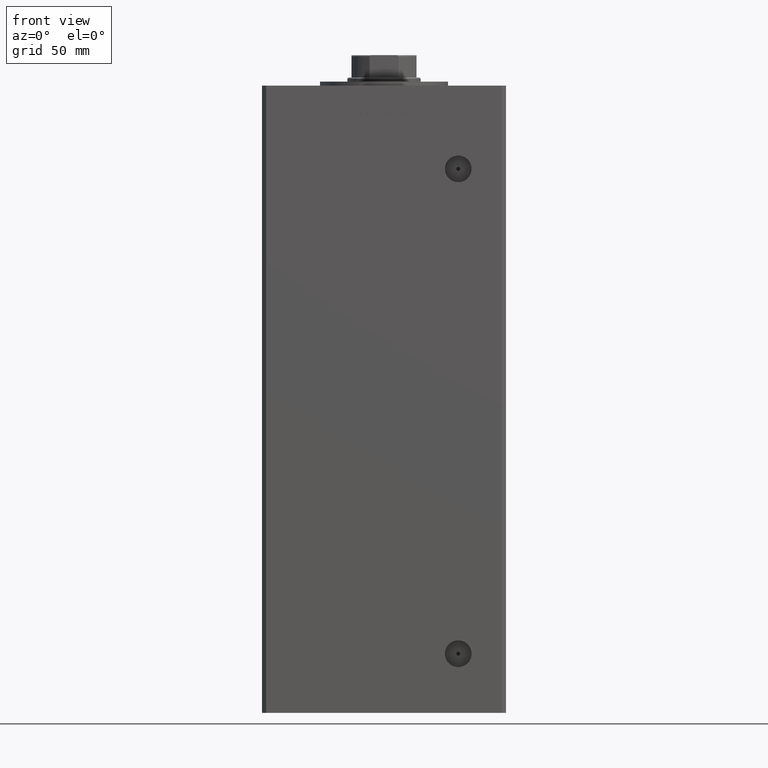
[diagram: clean part render]
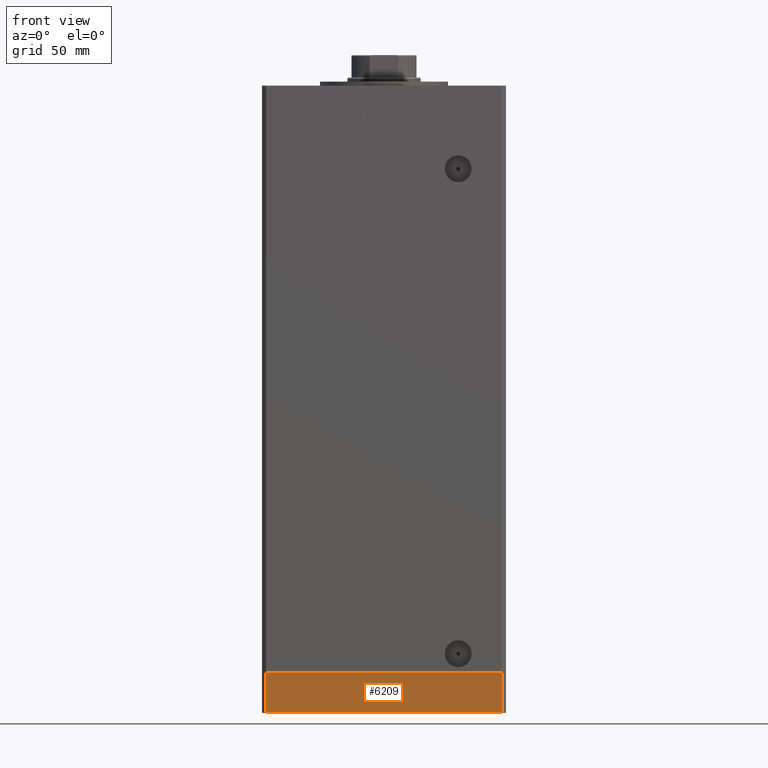
[diagram: same view with one face highlighted and labeled with its STEP entity id]
A machine part, front view. The second image highlights one B-rep face of the part: STEP entity #6209.
In plain terms, the highlighted planar face has unit normal (-0, -1, -0).
Its self-contained STEP definition (entity closure, byte-faithful):
#2713 = CARTESIAN_POINT ( 'NONE',  ( -57.99999999999997868, -51.00000000000001421, -20.00000000000000000 ) ) ;
#4733 = CARTESIAN_POINT ( 'NONE',  ( -57.99999999999997868, -51.00000000000001421, 0.000000000000000000 ) ) ;
#6209 = ADVANCED_FACE ( 'NONE', ( #22712 ), #38508, .T. ) ;
#8237 = LINE ( 'NONE', #28286, #10911 ) ;
#8427 = DIRECTION ( 'NONE',  ( 0.000000000000000000, 0.000000000000000000, 1.000000000000000000 ) ) ;
#9069 = VERTEX_POINT ( 'NONE', #18707 ) ;
#10055 = DIRECTION ( 'NONE',  ( 1.196361017915039486E-16, -1.000000000000000000, 0.000000000000000000 ) ) ;
#10882 = AXIS2_PLACEMENT_3D ( 'NONE', #46679, #10055, #34306 ) ;
#10911 = VECTOR ( 'NONE', #40657, 1000.000000000000000 ) ;
#11977 = VECTOR ( 'NONE', #8427, 1000.000000000000000 ) ;
#13757 = DIRECTION ( 'NONE',  ( 0.000000000000000000, 0.000000000000000000, 1.000000000000000000 ) ) ;
#15991 = CARTESIAN_POINT ( 'NONE',  ( -57.99999999999997868, -51.00000000000001421, 0.000000000000000000 ) ) ;
#17502 = ORIENTED_EDGE ( 'NONE', *, *, #35067, .T. ) ;
#18707 = CARTESIAN_POINT ( 'NONE',  ( 58.00000000000000000, -51.00000000000000711, -20.00000000000000000 ) ) ;
#18986 = VECTOR ( 'NONE', #13757, 1000.000000000000000 ) ;
#19733 = EDGE_CURVE ( 'NONE', #24659, #47806, #33808, .T. ) ;
#20307 = LINE ( 'NONE', #28462, #11977 ) ;
#20473 = LINE ( 'NONE', #15991, #21096 ) ;
#21096 = VECTOR ( 'NONE', #44966, 1000.000000000000000 ) ;
#22712 = FACE_OUTER_BOUND ( 'NONE', #44669, .T. ) ;
#24659 = VERTEX_POINT ( 'NONE', #2713 ) ;
#28286 = CARTESIAN_POINT ( 'NONE',  ( -57.99999999999997868, -51.00000000000001421, -20.00000000000000000 ) ) ;
#28462 = CARTESIAN_POINT ( 'NONE',  ( 58.00000000000000000, -51.00000000000000711, -20.00000000000000000 ) ) ;
#28677 = ORIENTED_EDGE ( 'NONE', *, *, #43408, .T. ) ;
#33808 = LINE ( 'NONE', #49882, #18986 ) ;
#34306 = DIRECTION ( 'NONE',  ( 1.000000000000000000, 1.196361017915039486E-16, 0.000000000000000000 ) ) ;
#35067 = EDGE_CURVE ( 'NONE', #24659, #9069, #8237, .T. ) ;
#37051 = CARTESIAN_POINT ( 'NONE',  ( 58.00000000000000000, -51.00000000000000711, 0.000000000000000000 ) ) ;
#37761 = EDGE_CURVE ( 'NONE', #47806, #41012, #20473, .T. ) ;
#38508 = PLANE ( 'NONE',  #10882 ) ;
#38954 = ORIENTED_EDGE ( 'NONE', *, *, #37761, .F. ) ;
#40657 = DIRECTION ( 'NONE',  ( 1.000000000000000000, 1.196361017915039486E-16, 0.000000000000000000 ) ) ;
#41012 = VERTEX_POINT ( 'NONE', #37051 ) ;
#43408 = EDGE_CURVE ( 'NONE', #9069, #41012, #20307, .T. ) ;
#44669 = EDGE_LOOP ( 'NONE', ( #38954, #45042, #17502, #28677 ) ) ;
#44966 = DIRECTION ( 'NONE',  ( 1.000000000000000000, 1.196361017915039486E-16, 0.000000000000000000 ) ) ;
#45042 = ORIENTED_EDGE ( 'NONE', *, *, #19733, .F. ) ;
#46679 = CARTESIAN_POINT ( 'NONE',  ( -57.99999999999997868, -51.00000000000001421, -20.00000000000000000 ) ) ;
#47806 = VERTEX_POINT ( 'NONE', #4733 ) ;
#49882 = CARTESIAN_POINT ( 'NONE',  ( -57.99999999999997868, -51.00000000000001421, -20.00000000000000000 ) ) ;